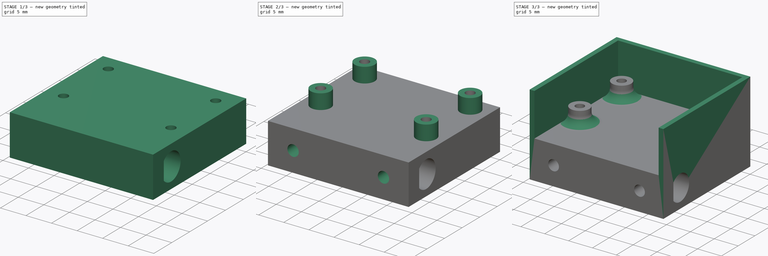
[diagram: build sequence overview — one tinted view per stage of 3, left to right]
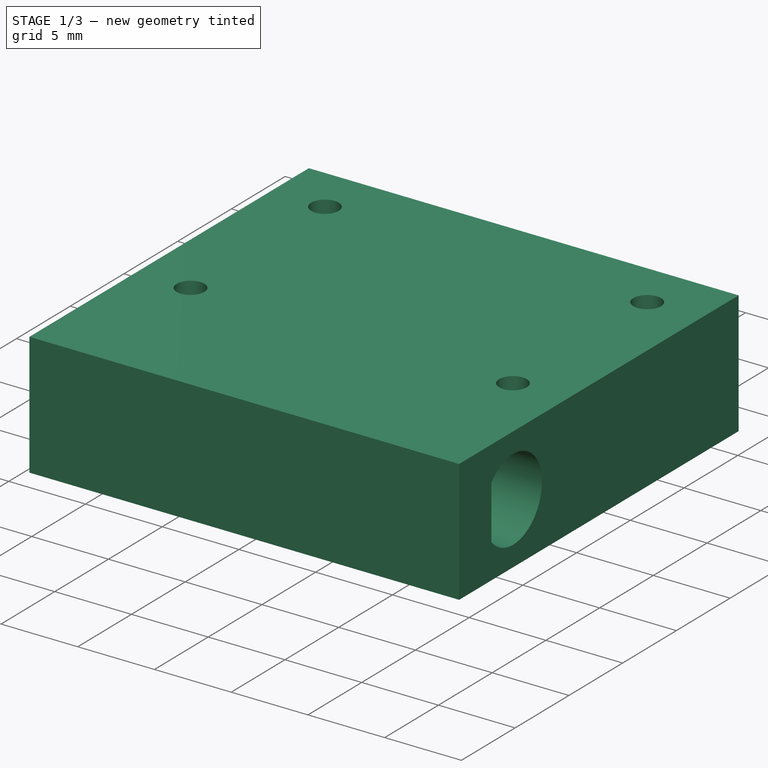
[diagram: stage 1 of 3 — iso view after this stage's code; geometry added in this stage tinted green]
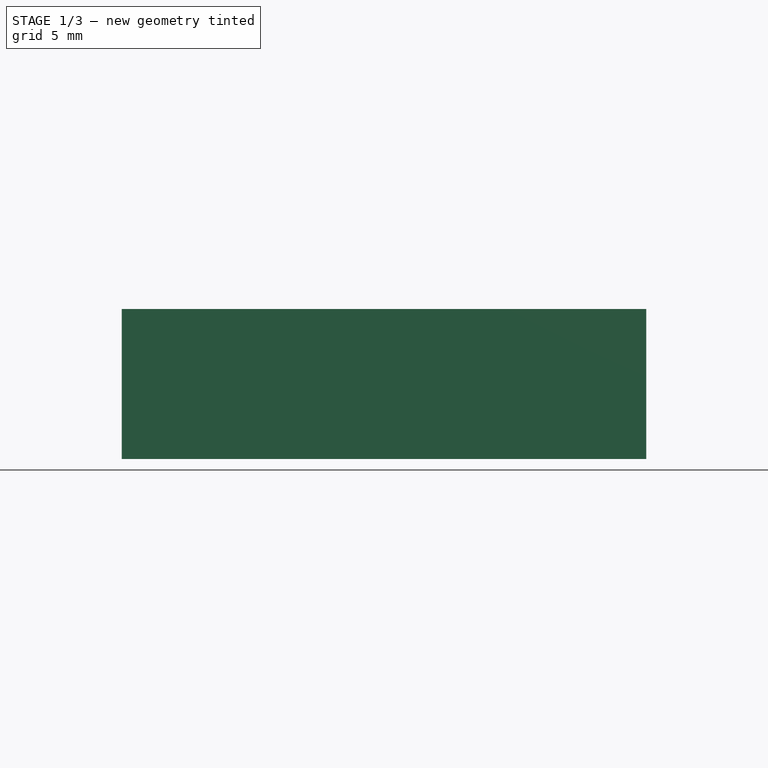
[diagram: stage 1 of 3 — front view after this stage's code; geometry added in this stage tinted green]
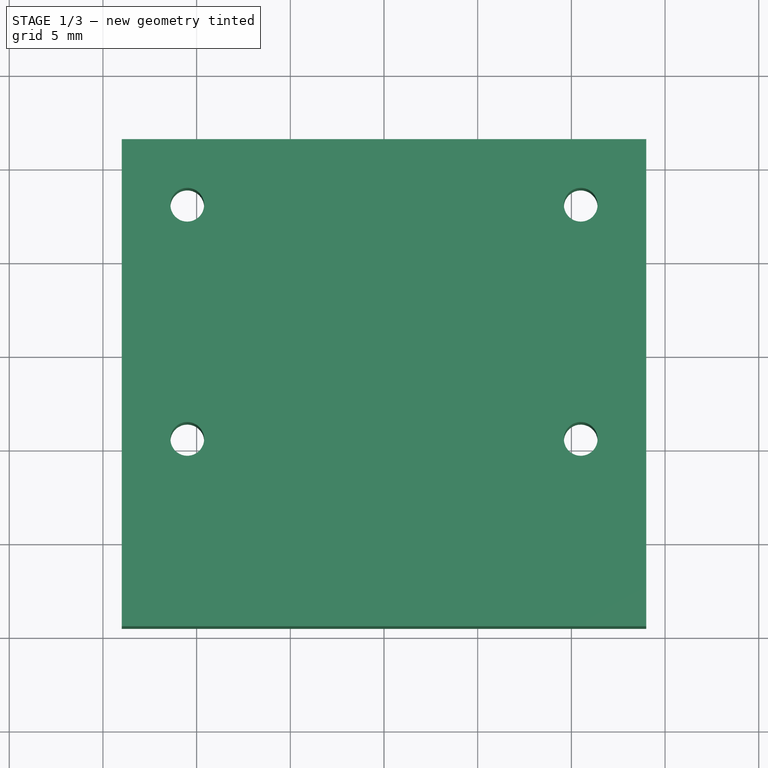
[diagram: stage 1 of 3 — top view after this stage's code; geometry added in this stage tinted green]
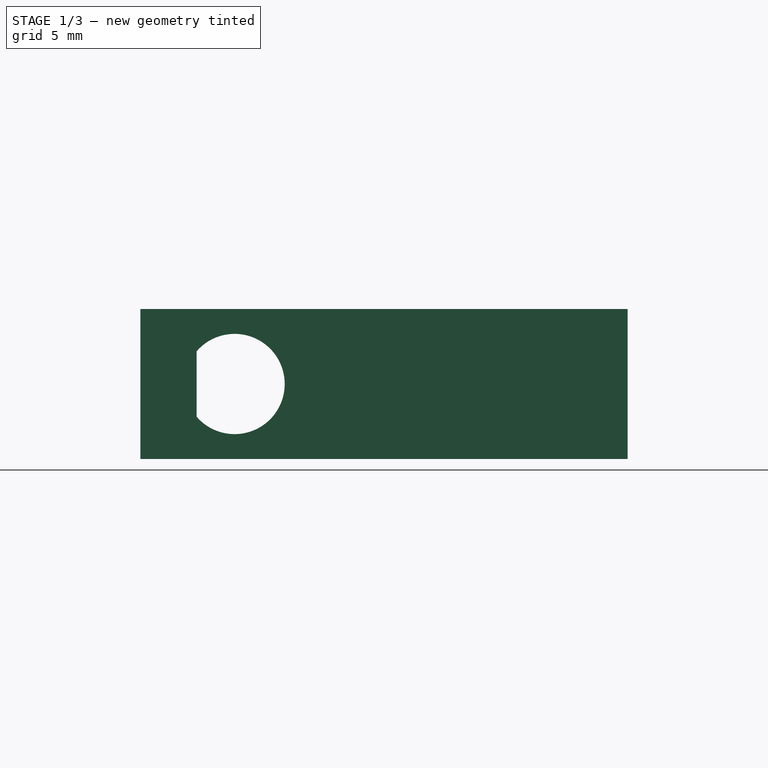
[diagram: stage 1 of 3 — right view after this stage's code; geometry added in this stage tinted green]
FCSTD DOCUMENT  (FreeCAD 1.0R39109 (Git))
Label: camera_holder
License: All rights reserved
LicenseURL: https://en.wikipedia.org/wiki/All_rights_reserved
objects: Sketcher::SketchObject×5, PartDesign::Pad×3, PartDesign::Pocket×2, PartDesign::Fillet×1, PartDesign::Body×1
note: 29 computed .brp shape members not serialized (recipe doc carries the construction recipe); baked Part::Feature solids carry a one-line shape summary decoded from their .brp

FEATURE [Sketcher::SketchObject] Sketch
  ArcFitTolerance = 1e-06
  AttachmentSupport = -> [XY_Plane]
  FullyConstrained = true
  MakeInternals = false
  MapMode = 5
  sketch-geometry (19):
    g0: LineSegment [constr] StartX=-12.5 StartY=-4 StartZ=0 EndX=12.5 EndY=-4 EndZ=0
    g1: LineSegment [constr] StartX=12.5 StartY=-4 StartZ=0 EndX=12.5 EndY=20 EndZ=0
    g2: LineSegment [constr] StartX=12.5 StartY=20 StartZ=0 EndX=-12.5 EndY=20 EndZ=0
    g3: LineSegment [constr] StartX=-12.5 StartY=20 StartZ=0 EndX=-12.5 EndY=-4 EndZ=0
    g4: GeomPoint [constr] X=0 Y=8 Z=0
    g5: LineSegment [constr] StartX=-10.5 StartY=18 StartZ=0 EndX=-10.5 EndY=5.5 EndZ=0
    g6: LineSegment [constr] StartX=-10.5 StartY=5.5 StartZ=0 EndX=10.5 EndY=5.5 EndZ=0
    g7: LineSegment [constr] StartX=10.5 StartY=5.5 StartZ=0 EndX=10.5 EndY=18 EndZ=0
    g8: LineSegment [constr] StartX=10.5 StartY=18 StartZ=0 EndX=-10.5 EndY=18 EndZ=0
    g9: GeomPoint [constr] X=0 Y=11.75 Z=0
    g10: Circle CenterX=-10.5 CenterY=18 CenterZ=0 NormalX=0 NormalY=0 NormalZ=1 AngleXU=0 Radius=0.9
    g11: Circle CenterX=10.5 CenterY=18 CenterZ=0 NormalX=0 NormalY=0 NormalZ=1 AngleXU=0 Radius=0.9
    g12: Circle CenterX=10.5 CenterY=5.5 CenterZ=0 NormalX=0 NormalY=0 NormalZ=1 AngleXU=0 Radius=0.9
    g13: Circle CenterX=-10.5 CenterY=5.5 CenterZ=0 NormalX=0 NormalY=0 NormalZ=1 AngleXU=0 Radius=0.9
    g14: LineSegment StartX=-14 StartY=21.5 StartZ=0 EndX=-14 EndY=-4.5 EndZ=0
    g15: LineSegment StartX=-14 StartY=-4.5 StartZ=0 EndX=14 EndY=-4.5 EndZ=0
    g16: LineSegment StartX=14 StartY=-4.5 StartZ=0 EndX=14 EndY=21.5 EndZ=0
    g17: LineSegment StartX=14 StartY=21.5 StartZ=0 EndX=-14 EndY=21.5 EndZ=0
    g18: GeomPoint [constr] X=0 Y=8.5 Z=0
  constraints (47):
    c: Coincident(g0,g1)
    c: Coincident(g1,g2)
    c: Coincident(g2,g3)
    c: Coincident(g3,g0)
    c: Horizontal(g0)
    c: Horizontal(g2)
    c: Vertical(g1)
    c: Vertical(g3)
    c: Symmetric(g2,g0,g4)
    c: PointOnObject(g4,g-2)
    c: DistanceX(g2,g2) = 25
    c: DistanceY(g3,g3) = 24
    c: Coincident(g5,g6)
    c: Coincident(g6,g7)
    c: Coincident(g7,g8)
    c: Coincident(g8,g5)
    c: Vertical(g5)
    c: Vertical(g7)
    c: Horizontal(g6)
    c: Horizontal(g8)
    c: Symmetric(g7,g5,g9)
    c: PointOnObject(g9,g-2)
    c: DistanceX(g6,g6) = 21
    c: DistanceY(g5,g5) = 12.5
    c: Distance(g2,g8) = 2
    c: Distance(g-1,g0) = 4
    c: Coincident(g10,g5)
    c: Diameter(g10) = 1.8
    c: Coincident(g11,g7)
    c: Coincident(g12,g6)
    c: Coincident(g13,g5)
    c: Equal(g13,g10)
    c: Equal(g10,g11)
    c: Equal(g11,g12)
    c: Coincident(g14,g15)
    c: Coincident(g15,g16)
    c: Coincident(g16,g17)
    c: Coincident(g17,g14)
    c: Vertical(g14)
    c: Vertical(g16)
    c: Horizontal(g15)
    c: Horizontal(g17)
    c: Symmetric(g16,g14,g18)
    c: PointOnObject(g18,g-2)
    c: Distance(g17,g2) = 1.5
    c: Distance(g1,g16) = 1.5
    c: Distance(g0,g15) = 0.5
FEATURE [PartDesign::Pad] Pad
  Direction = (0,0,1)
  Length = 8
  Length2 = 10
  Profile = -> Sketch
  ReferenceAxis = -> Sketch [N_Axis]
  Refine = true
  Reversed = true
  Suppressed = false
  Type = 0
FEATURE [Sketcher::SketchObject] Sketch001
  ArcFitTolerance = 1e-06
  AttachmentSupport = -> [Pad]
  ExternalGeometry = -> [Pad]
  FullyConstrained = true
  MakeInternals = false
  MapMode = 5
  Placement = pos=(-14,0,0) rot=(0.57735,-0.57735,-0.57735;2.0944rad)
  sketch-geometry (4):
    g0: ArcOfCircle CenterX=-0.525 CenterY=-4 CenterZ=0 NormalX=0 NormalY=0 NormalZ=1 AngleXU=0 Radius=2.675 StartAngle=0.712072 EndAngle=5.57111
    g1: LineSegment StartX=1.5 StartY=-5.74786 StartZ=0 EndX=1.5 EndY=-2.25214 EndZ=0
    g2: LineSegment [constr] StartX=1.5 StartY=-4 StartZ=0 EndX=-3.2 EndY=-4 EndZ=0
    g3: LineSegment [constr] StartX=1.5 StartY=-4 StartZ=0 EndX=4.5 EndY=-4 EndZ=0
  constraints (12):
    c: Diameter(g0) = 5.35
    c: Vertical(g1)
    c: Coincident(g0,g1)
    c: Coincident(g0,g1)
    c: Symmetric(g1,g1,g2)
    c: PointOnObject(g2,g0)
    c: Horizontal(g2)
    c: DistanceX(g2,g2) = 4.7
    c: Coincident(g3,g2)
    c: Horizontal(g3)
    c: Symmetric(g-3,g-3,g3)
    c: DistanceX(g3,g3) = 3
FEATURE [PartDesign::Pocket] Pocket
  BaseFeature = -> Pad
  Direction = (1,0,0)
  Length = 100
  Length2 = 5
  Profile = -> Sketch001
  ReferenceAxis = -> Sketch001 [N_Axis]
  Refine = true
  Suppressed = false
  Type = 0
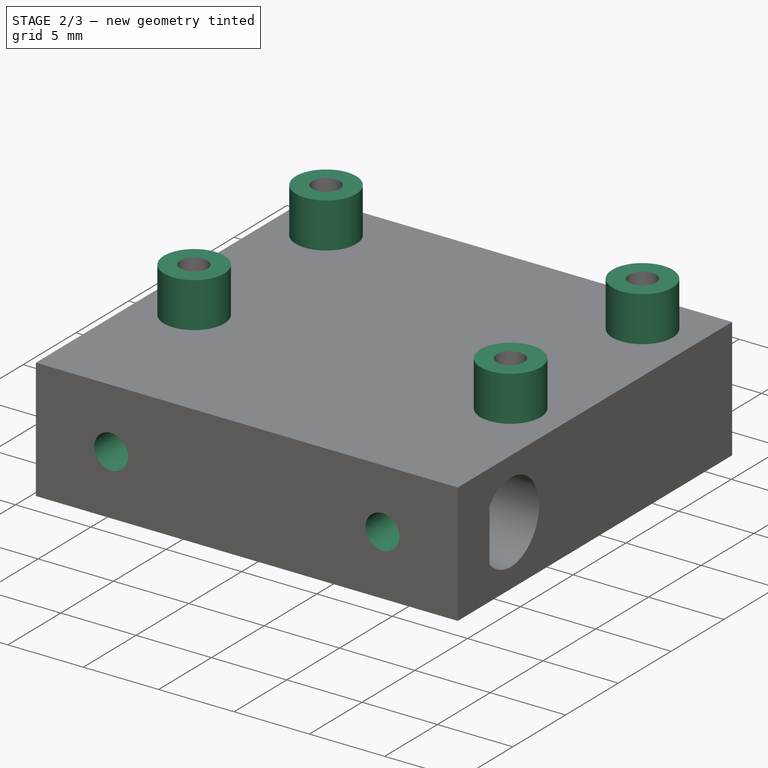
[diagram: stage 2 of 3 — iso view after this stage's code; geometry added in this stage tinted green]
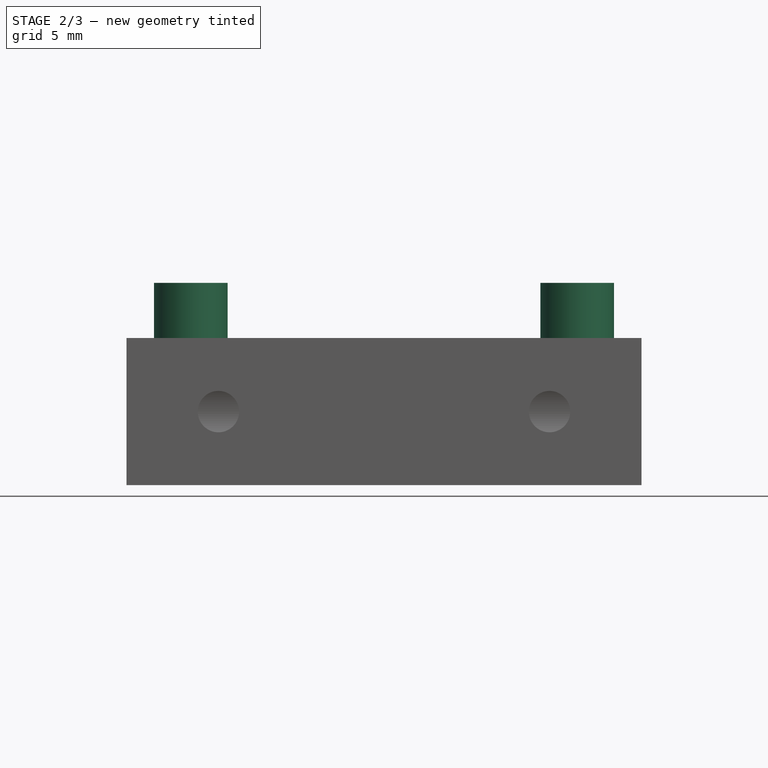
[diagram: stage 2 of 3 — front view after this stage's code; geometry added in this stage tinted green]
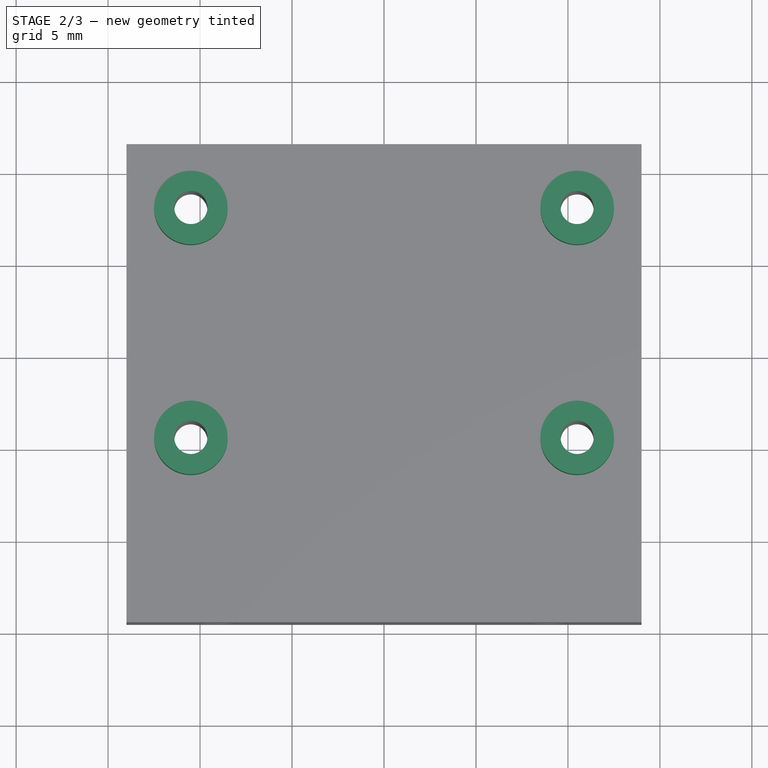
[diagram: stage 2 of 3 — top view after this stage's code; geometry added in this stage tinted green]
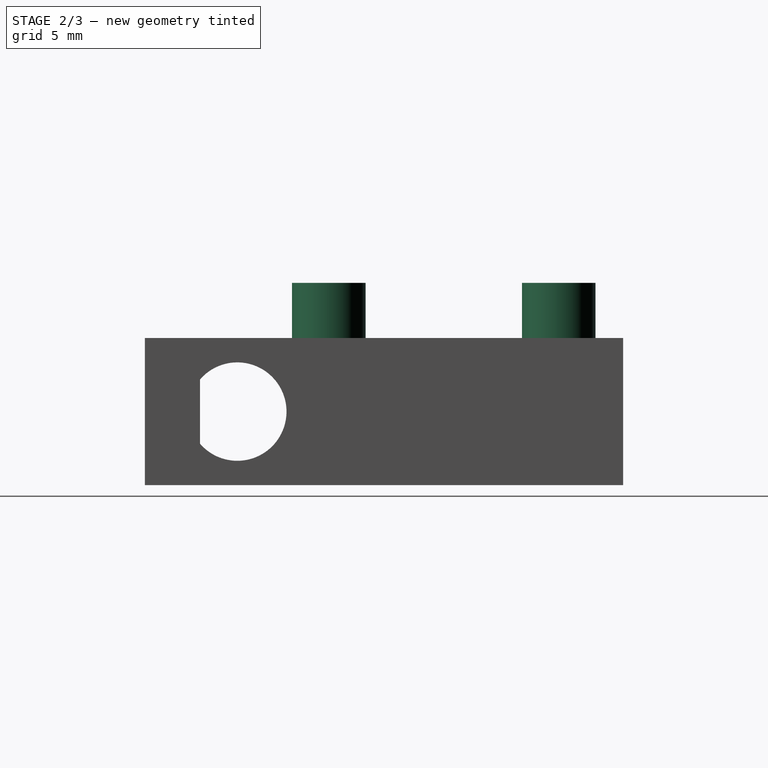
[diagram: stage 2 of 3 — right view after this stage's code; geometry added in this stage tinted green]
FEATURE [Sketcher::SketchObject] Sketch002
  ArcFitTolerance = 1e-06
  AttachmentSupport = -> [Pocket]
  ExternalGeometry = -> [Pocket]
  FullyConstrained = true
  MakeInternals = false
  MapMode = 5
  Placement = pos=(0,-4.5,0) rot=(1,0,0;1.5708rad)
  sketch-geometry (3):
    g0: Circle CenterX=-9 CenterY=-4 CenterZ=0 NormalX=0 NormalY=0 NormalZ=1 AngleXU=0 Radius=1.125
    g1: Circle CenterX=9 CenterY=-4 CenterZ=0 NormalX=0 NormalY=0 NormalZ=1 AngleXU=0 Radius=1.125
    g2: LineSegment [constr] StartX=-9 StartY=0 StartZ=0 EndX=-9 EndY=-8 EndZ=0
  constraints (8):
    c: Diameter(g0) = 2.25
    c: DistanceX(g-3,g0) = 5
    c: Equal(g0,g1)
    c: Symmetric(g0,g1,g-2)
    c: PointOnObject(g2,g-1)
    c: PointOnObject(g2,g-3)
    c: Vertical(g2)
    c: Symmetric(g2,g2,g0)
FEATURE [PartDesign::Pocket] Pocket001
  BaseFeature = -> Pocket
  Direction = (0,1,-2e-16)
  Length = 5
  Length2 = 5
  Profile = -> Sketch002
  ReferenceAxis = -> Sketch002 [N_Axis]
  Refine = true
  Suppressed = false
  Type = 0
FEATURE [Sketcher::SketchObject] Sketch003
  ArcFitTolerance = 1e-06
  AttachmentSupport = -> [Pocket001]
  ExternalGeometry = -> [Pocket001]
  FullyConstrained = true
  MakeInternals = false
  MapMode = 5
  sketch-geometry (8):
    g0: Circle CenterX=-10.5 CenterY=18 CenterZ=0 NormalX=0 NormalY=0 NormalZ=1 AngleXU=0 Radius=0.9
    g1: Circle CenterX=-10.5 CenterY=5.5 CenterZ=0 NormalX=0 NormalY=0 NormalZ=1 AngleXU=0 Radius=0.9
    g2: Circle CenterX=10.5 CenterY=18 CenterZ=0 NormalX=0 NormalY=0 NormalZ=1 AngleXU=0 Radius=0.9
    g3: Circle CenterX=10.5 CenterY=5.5 CenterZ=0 NormalX=0 NormalY=0 NormalZ=1 AngleXU=0 Radius=0.9
    g4: Circle CenterX=-10.5 CenterY=18 CenterZ=0 NormalX=0 NormalY=0 NormalZ=1 AngleXU=0 Radius=2
    g5: Circle CenterX=-10.5 CenterY=5.5 CenterZ=0 NormalX=0 NormalY=0 NormalZ=1 AngleXU=0 Radius=2
    g6: Circle CenterX=10.5 CenterY=5.5 CenterZ=0 NormalX=0 NormalY=0 NormalZ=1 AngleXU=0 Radius=2
    g7: Circle CenterX=10.5 CenterY=18 CenterZ=0 NormalX=0 NormalY=0 NormalZ=1 AngleXU=0 Radius=2
  constraints (16):
    c: Coincident(g0,g-6)
    c: Equal(g0,g-6)
    c: Coincident(g1,g-5)
    c: Equal(g1,g-5)
    c: Coincident(g2,g-3)
    c: Equal(g2,g-3)
    c: Coincident(g3,g-4)
    c: Equal(g3,g-4)
    c: Coincident(g4,g0)
    c: Coincident(g5,g1)
    c: Coincident(g6,g3)
    c: Coincident(g7,g2)
    c: Equal(g7,g4)
    c: Equal(g4,g5)
    c: Equal(g5,g6)
    c: Diameter(g4) = 4
FEATURE [PartDesign::Pad] Pad001
  BaseFeature = -> Pocket001
  Direction = (0,0,1)
  Length = 3
  Length2 = 10
  Profile = -> Sketch003
  ReferenceAxis = -> Sketch003 [N_Axis]
  Refine = true
  Suppressed = false
  Type = 0
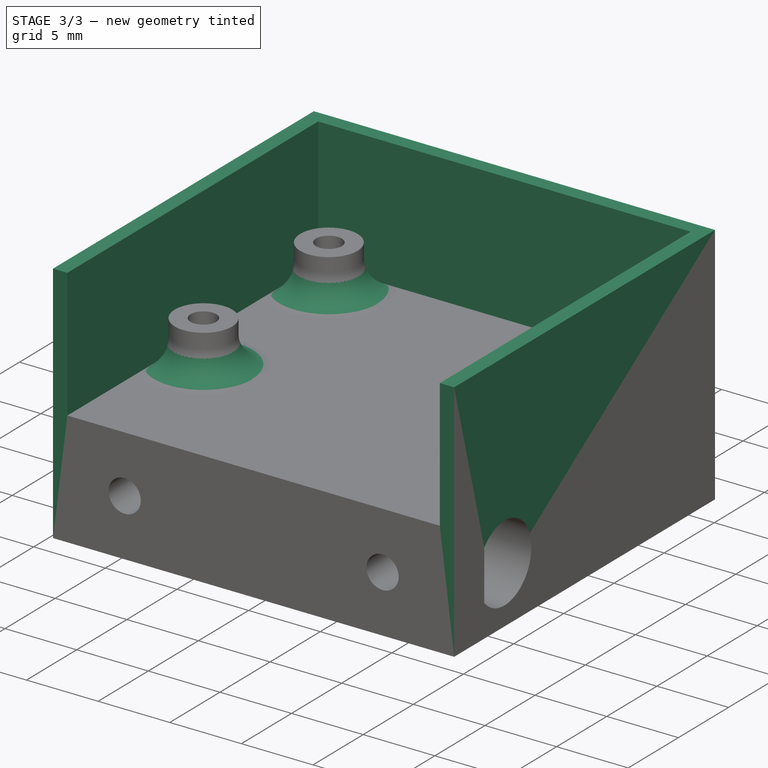
[diagram: stage 3 of 3 — iso view after this stage's code; geometry added in this stage tinted green]
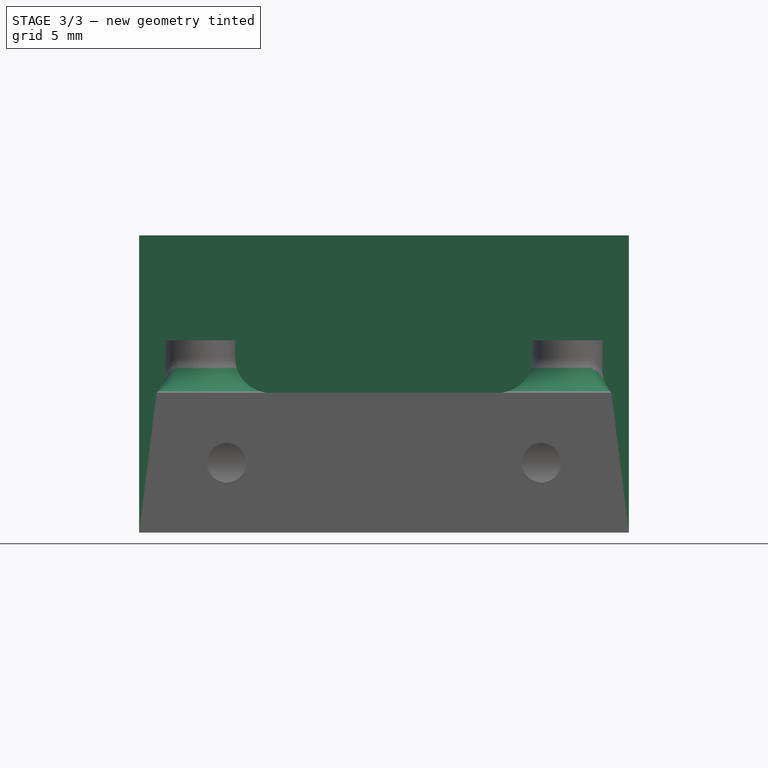
[diagram: stage 3 of 3 — front view after this stage's code; geometry added in this stage tinted green]
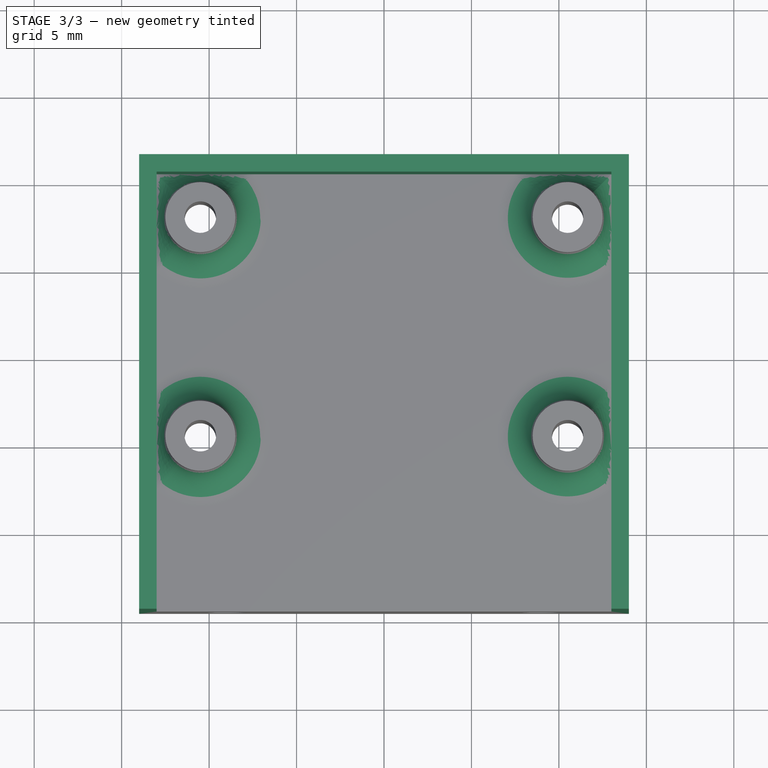
[diagram: stage 3 of 3 — top view after this stage's code; geometry added in this stage tinted green]
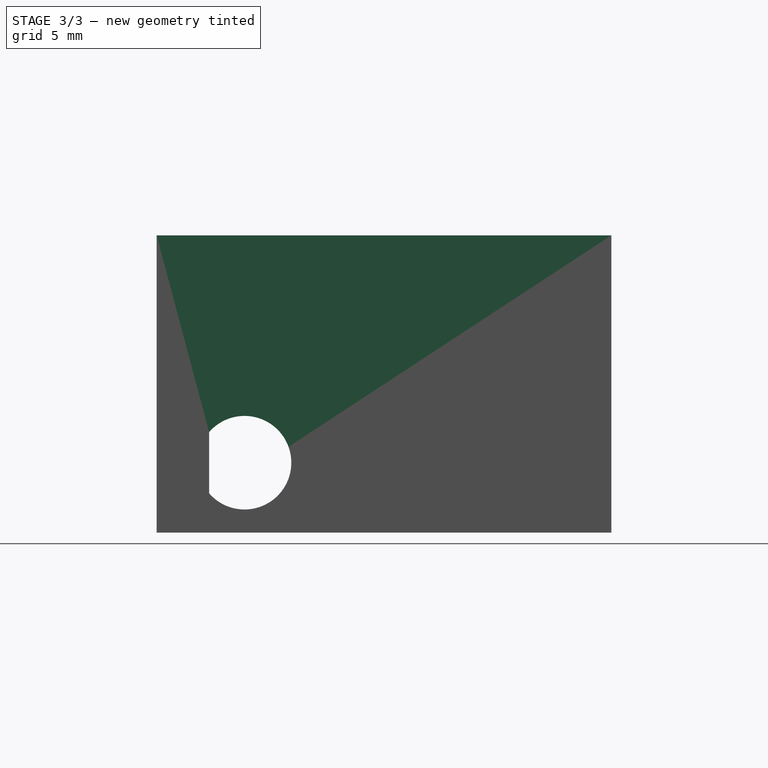
[diagram: stage 3 of 3 — right view after this stage's code; geometry added in this stage tinted green]
FEATURE [Sketcher::SketchObject] Sketch004
  ArcFitTolerance = 1e-06
  AttachmentSupport = -> [Pad001]
  ExternalGeometry = -> [Pad001]
  FullyConstrained = true
  MakeInternals = false
  MapMode = 5
  sketch-geometry (8):
    g0: LineSegment StartX=-14 StartY=-4.5 StartZ=0 EndX=-13 EndY=-4.5 EndZ=0
    g1: LineSegment StartX=-13 StartY=-4.5 StartZ=0 EndX=-13 EndY=20.5 EndZ=0
    g2: LineSegment StartX=-13 StartY=20.5 StartZ=0 EndX=13 EndY=20.5 EndZ=0
    g3: LineSegment StartX=13 StartY=20.5 StartZ=0 EndX=13 EndY=-4.5 EndZ=0
    g4: LineSegment StartX=13 StartY=-4.5 StartZ=0 EndX=14 EndY=-4.5 EndZ=0
    g5: LineSegment StartX=14 StartY=-4.5 StartZ=0 EndX=14 EndY=21.5 EndZ=0
    g6: LineSegment StartX=14 StartY=21.5 StartZ=0 EndX=-14 EndY=21.5 EndZ=0
    g7: LineSegment StartX=-14 StartY=21.5 StartZ=0 EndX=-14 EndY=-4.5 EndZ=0
  constraints (20):
    c: Coincident(g0,g-3)
    c: Horizontal(g0)
    c: Coincident(g1,g0)
    c: Vertical(g1)
    c: Coincident(g2,g1)
    c: Horizontal(g2)
    c: Vertical(g3)
    c: Coincident(g4,g3)
    c: Coincident(g4,g-5)
    c: Horizontal(g4)
    c: Coincident(g5,g4)
    c: Coincident(g5,g-5)
    c: Coincident(g6,g5)
    c: Coincident(g6,g-4)
    c: Coincident(g7,g6)
    c: Coincident(g7,g0)
    c: Distance(g1,g7) = 1
    c: Distance(g6,g2) = 1
    c: Distance(g5,g3) = 1
    c: Coincident(g3,g2)
FEATURE [PartDesign::Pad] Pad002
  BaseFeature = -> Pad001
  Direction = (0,0,1)
  Length = 9
  Length2 = 10
  Profile = -> Sketch004
  ReferenceAxis = -> Sketch004 [N_Axis]
  Refine = true
  Suppressed = false
  Type = 0
  expr: Length = 3 + 1 + 5
FEATURE [PartDesign::Fillet] Fillet
  Base = -> Pad002 [Edge7,Edge5,Edge8,Edge6]
  BaseFeature = -> Pad002
  Radius = 2
  Refine = true
  SupportTransform = false
  Suppressed = false
  UseAllEdges = false
FEATURE [PartDesign::Body] Body
  AllowCompound = false
  Group = -> [Sketch,Pad,Sketch001,Pocket,Sketch002,Pocket001,Sketch003,Pad001,Sketch004,Pad002,Fillet]
  Origin = -> Origin
  Tip = -> Fillet
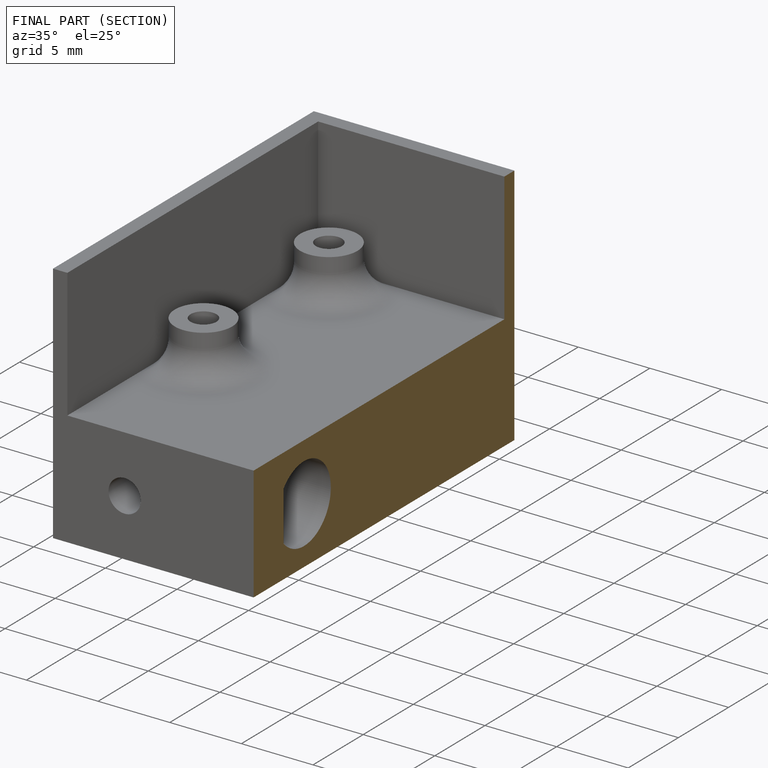
[diagram: finished part — half-section view (interior)]
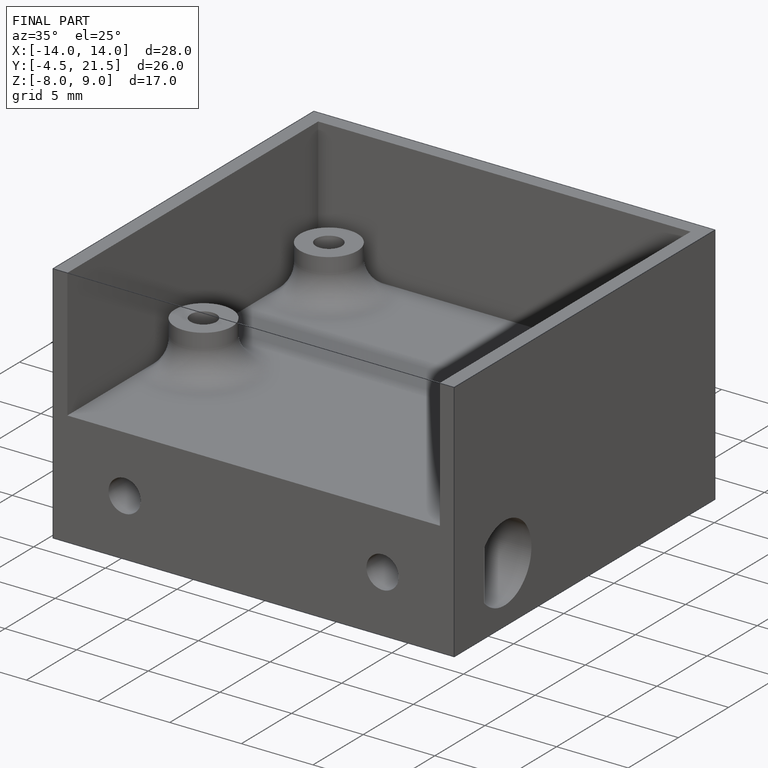
[diagram: finished part — iso view with bounding-box wireframe]
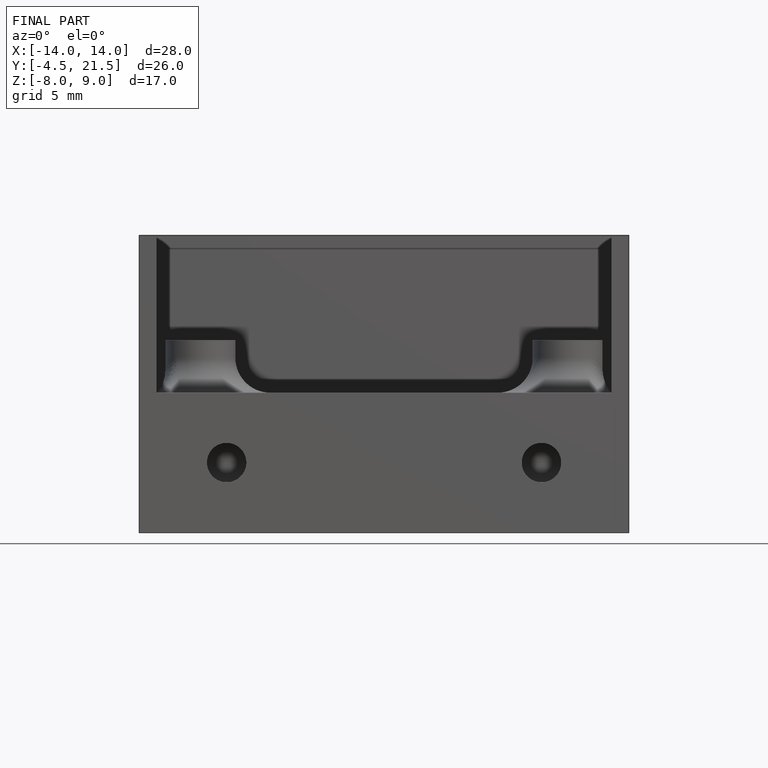
[diagram: finished part — front view with bounding-box wireframe]
